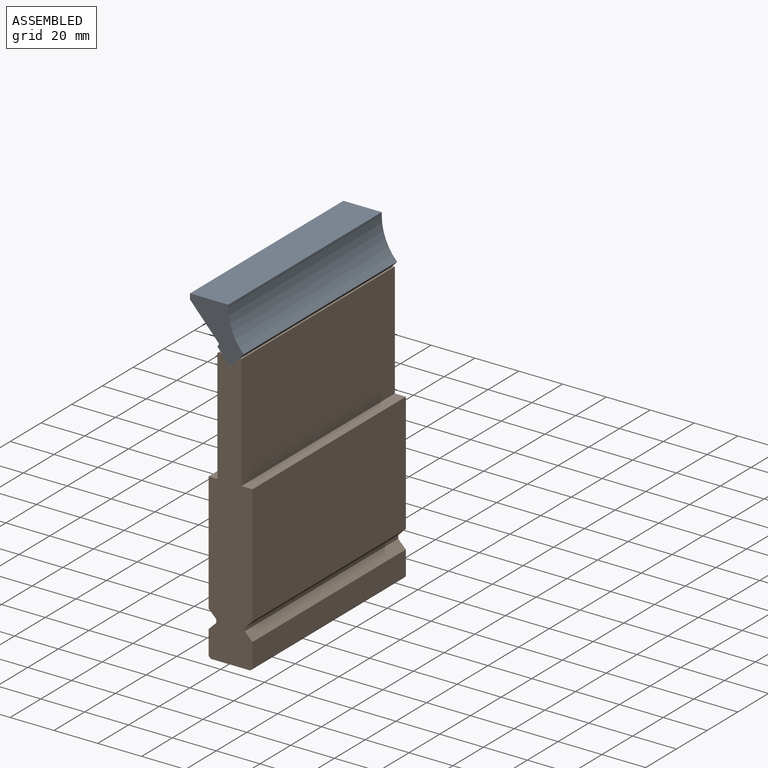
[diagram: assembled view]
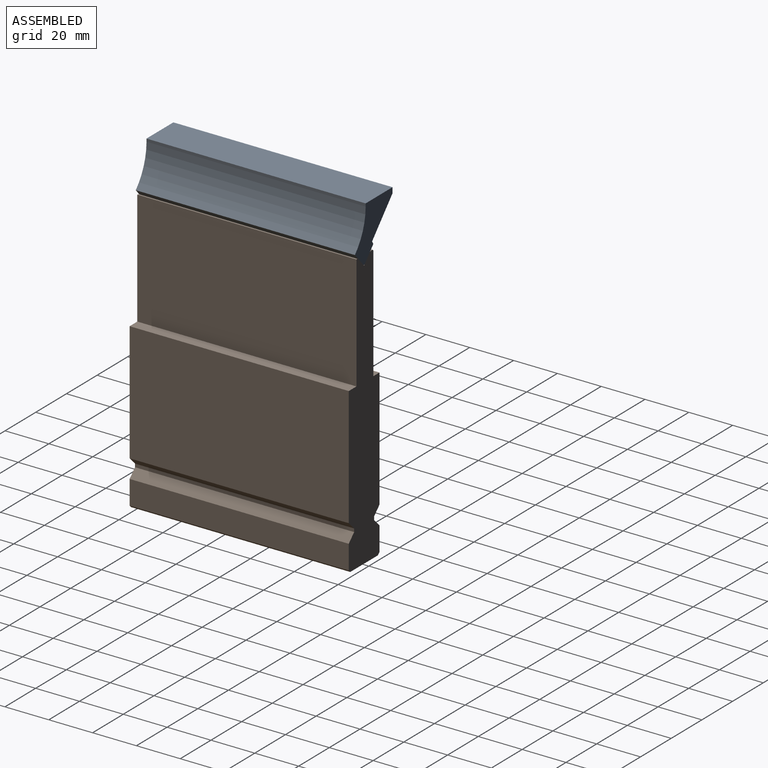
[diagram: assembled view, second angle]
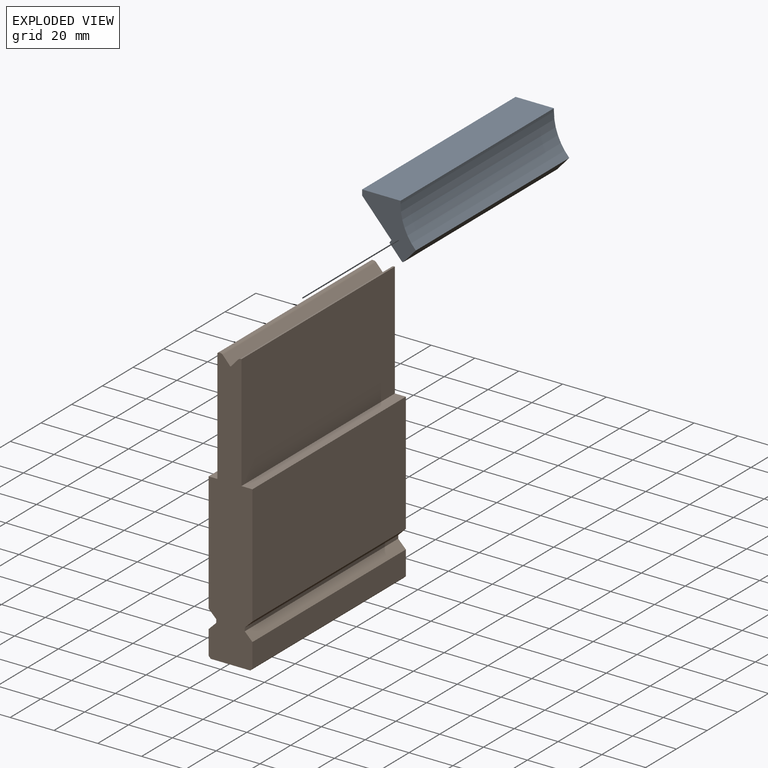
[diagram: exploded view]
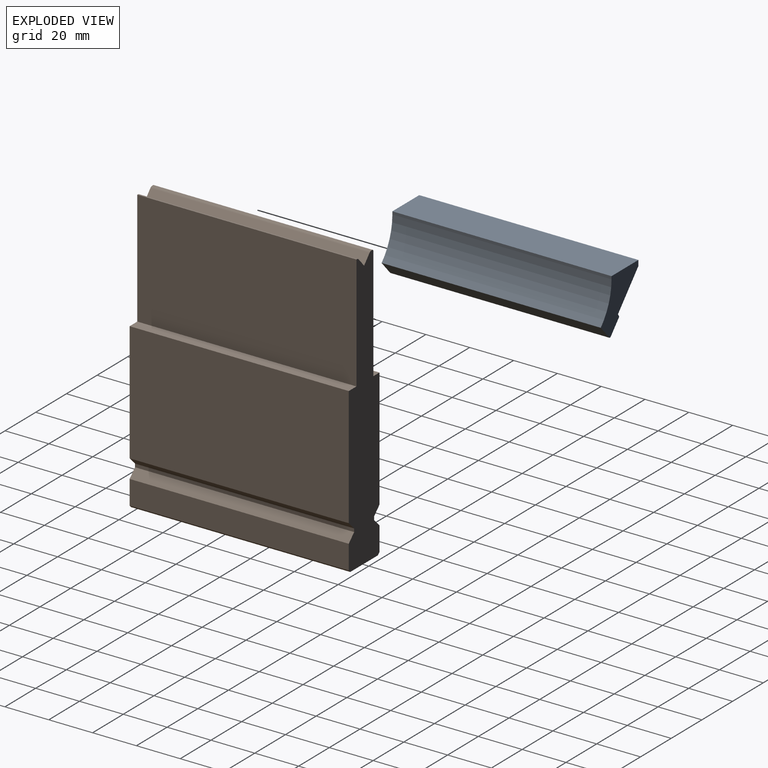
[diagram: exploded view, second angle]
ASSEMBLY  parts=2 mates=2
PART A: 11 faces, bbox 24.5x100x25 mm
  f0: cylinder r=0.6mm len=100mm, axis (0,1,0), area 100.5mm2, adj f1,f7,f8,f9
  f1: plane 100x6.16mm, normal (0.74,0,-0.67), area 829.1mm2, adj f0,f2,f8,f9
  f2: cylinder r=25mm len=100mm, axis (0,1,0), area 1916.6mm2, adj f1,f3,f8,f9
  f3: plane 100x1.3mm, normal (1,0,0), area 129.7mm2, adj f2,f8,f9,f10
  f4: plane 100x2.51mm, normal (-1,0,0), area 250.9mm2, adj f5,f8,f9,f10
  f5: plane 100x14.8mm, normal (-0.74,0,-0.67), area 1991.2mm2, adj f4,f6,f8,f9
  f6: plane 100x1.3mm, normal (-0.84,0,0.54), area 155.3mm2, adj f5,f7,f8,f9
  f7: plane 100x6.19mm, normal (-0.74,0,-0.67), area 833.4mm2, adj f0,f6,f8,f9
  f8: plane 25x24.49mm, normal (0,-1,0), area 288.1mm2, adj f0,f1,f2,f3,f4,f5,f6,f7
  f9: plane 25x24.49mm, normal (0,1,0), area 288.1mm2, adj f0,f1,f2,f3,f4,f5,f6,f7
  f10: plane 100x17.5mm, normal (0,0,1), area 1750mm2, adj f3,f4,f8,f9
PART B: 26 faces, bbox 20x100x127.3 mm
  f0: plane 100x1mm, normal (-0.71,0,-0.71), area 141.4mm2, adj f1,f23,f24,f25
  f1: plane 100x18mm, normal (0,0,-1), area 1800mm2, adj f0,f2,f24,f25
  f2: plane 100x1mm, normal (0.71,0,-0.71), area 141.4mm2, adj f1,f3,f24,f25
  f3: plane 100x11mm, normal (1,0,0), area 1100mm2, adj f2,f4,f24,f25
  f4: plane 100x3.5mm, normal (0.71,0,0.71), area 495mm2, adj f3,f5,f24,f25
  f5: plane 100x1.5mm, normal (1,0,0), area 150mm2, adj f4,f6,f24,f25
  f6: plane 100x3.5mm, normal (0.71,0,-0.71), area 495mm2, adj f5,f7,f24,f25
  f7: plane 100x54.5mm, normal (1,0,0), area 5450mm2, adj f6,f8,f24,f25
  f8: plane 100x5mm, normal (0,0,1), area 500mm2, adj f7,f9,f24,f25
  f9: plane 100x52.34mm, normal (1,0,0), area 5233.6mm2, adj f8,f10,f24,f25
  f10: plane 100x0.33mm, normal (0,0,1), area 33.2mm2, adj f9,f11,f24,f25
  f11: cylinder r=1.5mm len=100mm, axis (0,1,0), area 125.7mm2, adj f10,f12,f24,f25
  f12: plane 100x3.95mm, normal (-0.74,0,0.67), area 531mm2, adj f11,f13,f24,f25
  f13: plane 100x3.95mm, normal (0.74,0,0.67), area 531mm2, adj f12,f14,f24,f25
  f14: cylinder r=1.5mm len=100mm, axis (0,1,0), area 125.7mm2, adj f13,f15,f24,f25
  f15: plane 100x0.83mm, normal (0,0,1), area 83.2mm2, adj f14,f16,f24,f25
  f16: plane 100x0.5mm, normal (-0.71,0,0.71), area 70.7mm2, adj f15,f17,f24,f25
  f17: plane 100x51.84mm, normal (-1,0,0), area 5183.6mm2, adj f16,f18,f24,f25
  f18: plane 100x4mm, normal (0,0,1), area 400mm2, adj f17,f19,f24,f25
  f19: plane 100x54.5mm, normal (-1,0,0), area 5450mm2, adj f18,f20,f24,f25
  f20: plane 100x3.5mm, normal (-0.71,0,-0.71), area 495mm2, adj f19,f21,f24,f25
  f21: plane 100x1.5mm, normal (-1,0,0), area 150mm2, adj f20,f22,f24,f25
  f22: plane 100x3.5mm, normal (-0.71,0,0.71), area 495mm2, adj f21,f23,f24,f25
  f23: plane 100x11mm, normal (-1,0,0), area 1100mm2, adj f0,f22,f24,f25
  f24: plane 127.34x20mm, normal (0,-1,0), area 2021.7mm2, adj f0,f1,f2,f3,f4,f5,f6,f7
  f25: plane 127.34x20mm, normal (0,1,0), area 2021.7mm2, adj f0,f1,f2,f3,f4,f5,f6,f7
PLACE A t=(3.47,0.71,220.63)mm
PLACE B t=(-403.16,0.71,319.2)mm
MATE planar B.f24 <-> A.f8  axis (0,-1,0) through (-76.1,-99.29,22.52)mm
MATE planar A.f1 <-> B.f12  axis (0.74,0,-0.67) through (-72.73,-49.29,93.76)mm
